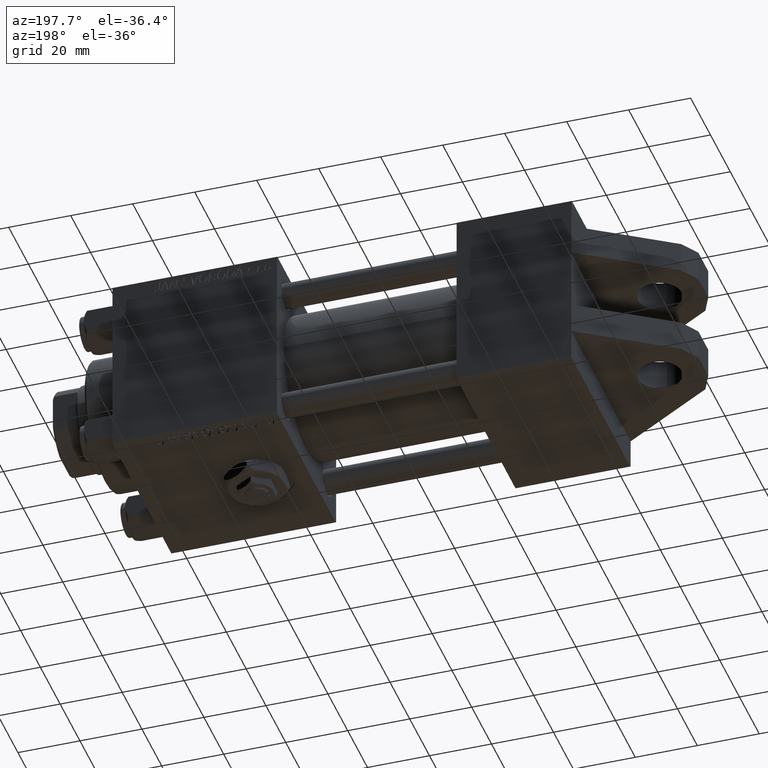
[diagram: clean part render]
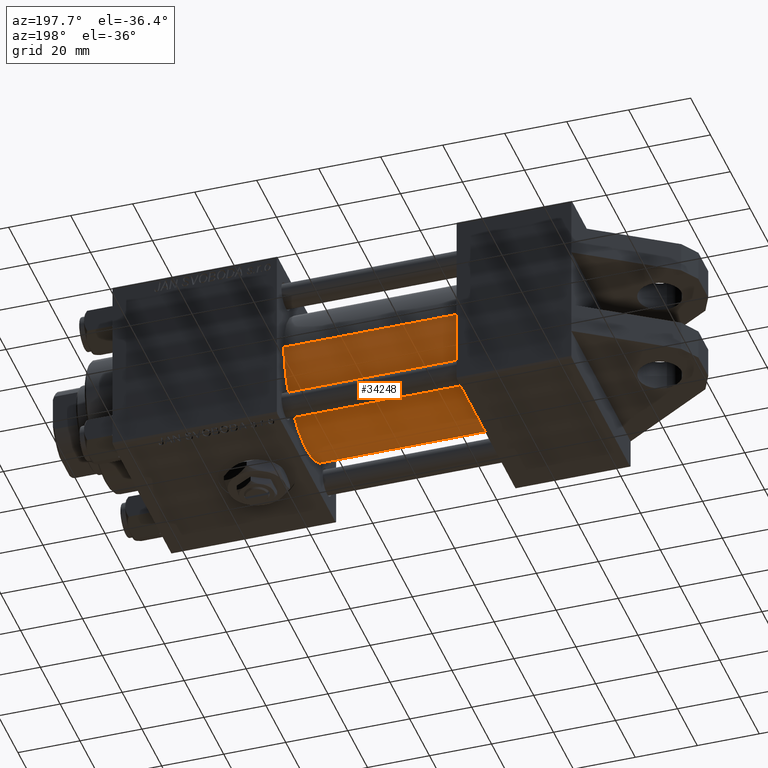
[diagram: same view with one face highlighted and labeled with its STEP entity id]
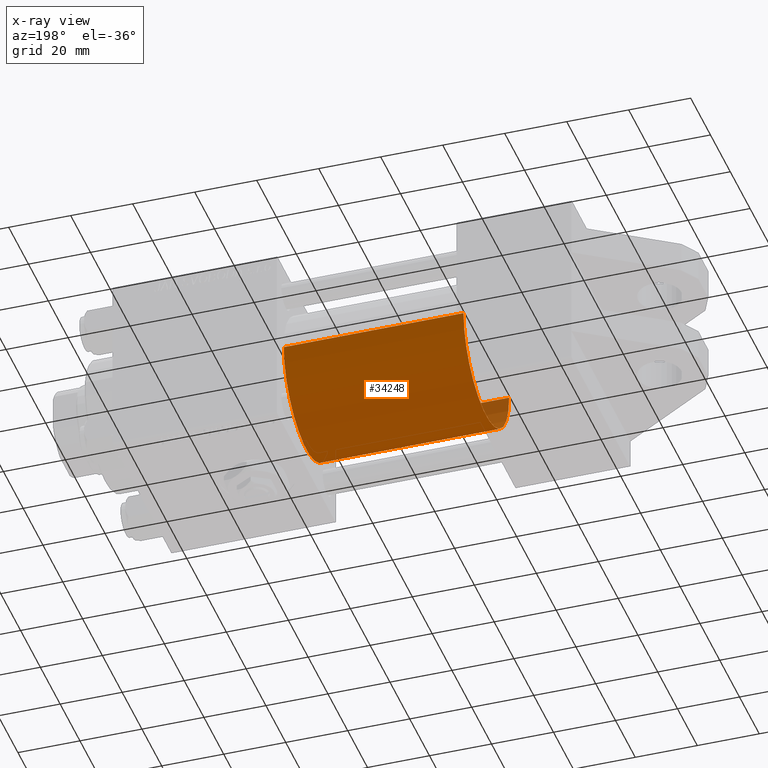
[diagram: x-ray of the same camera — body ghosted, the highlighted face saturated]
A machine part, auxiliary view. The second image highlights one B-rep face of the part: STEP entity #34248.
The next image is the same camera in x-ray: the body ghosted, the highlighted face saturated — about 3% of this face is hidden behind the body in this view.
In plain terms, the highlighted cylindrical surface (partial cylindrical patch) has radius 23 mm, axis along (-1, -0, 0).
Its self-contained STEP definition (entity closure, byte-faithful):
#630 = LINE ( 'NONE', #16745, #14661 ) ;
#833 = AXIS2_PLACEMENT_3D ( 'NONE', #4963, #28916, #21086 ) ;
#3723 = CARTESIAN_POINT ( 'NONE',  ( 37.00000000000000000, -6.527593139147022314E-16, -23.00000000000000000 ) ) ;
#3897 = LINE ( 'NONE', #4148, #19136 ) ;
#4148 = CARTESIAN_POINT ( 'NONE',  ( 95.00000000000000000, -6.527593139147022314E-16, -23.00000000000000000 ) ) ;
#4963 = CARTESIAN_POINT ( 'NONE',  ( 37.00000000000000000, -3.469446951953614189E-15, 0.000000000000000000 ) ) ;
#7312 = VERTEX_POINT ( 'NONE', #21875 ) ;
#8770 = DIRECTION ( 'NONE',  ( 0.000000000000000000, 0.000000000000000000, 1.000000000000000000 ) ) ;
#9037 = CARTESIAN_POINT ( 'NONE',  ( 95.00000000000000000, -3.469446951953614189E-15, 0.000000000000000000 ) ) ;
#10778 = ORIENTED_EDGE ( 'NONE', *, *, #46070, .T. ) ;
#11999 = DIRECTION ( 'NONE',  ( 0.000000000000000000, 0.000000000000000000, -1.000000000000000000 ) ) ;
#12203 = ORIENTED_EDGE ( 'NONE', *, *, #15894, .F. ) ;
#13992 = AXIS2_PLACEMENT_3D ( 'NONE', #19267, #30745, #11999 ) ;
#14661 = VECTOR ( 'NONE', #47222, 1000.000000000000000 ) ;
#15085 = CARTESIAN_POINT ( 'NONE',  ( 95.00000000000000000, -6.527593139147022314E-16, -23.00000000000000000 ) ) ;
#15298 = ORIENTED_EDGE ( 'NONE', *, *, #33704, .F. ) ;
#15894 = EDGE_CURVE ( 'NONE', #37842, #7312, #25511, .T. ) ;
#16059 = DIRECTION ( 'NONE',  ( -1.000000000000000000, -0.000000000000000000, -0.000000000000000000 ) ) ;
#16745 = CARTESIAN_POINT ( 'NONE',  ( 95.00000000000000000, -3.469446951953614189E-15, 23.00000000000000000 ) ) ;
#19136 = VECTOR ( 'NONE', #40056, 1000.000000000000000 ) ;
#19267 = CARTESIAN_POINT ( 'NONE',  ( 95.00000000000000000, -3.469446951953614189E-15, 0.000000000000000000 ) ) ;
#20481 = FACE_OUTER_BOUND ( 'NONE', #35387, .T. ) ;
#20780 = CIRCLE ( 'NONE', #833, 23.00000000000000000 ) ;
#21086 = DIRECTION ( 'NONE',  ( 0.000000000000000000, 0.000000000000000000, 1.000000000000000000 ) ) ;
#21875 = CARTESIAN_POINT ( 'NONE',  ( 95.00000000000000000, -3.469446951953614189E-15, 23.00000000000000000 ) ) ;
#25511 = CIRCLE ( 'NONE', #13992, 23.00000000000000000 ) ;
#25898 = CARTESIAN_POINT ( 'NONE',  ( 37.00000000000000000, -3.469446951953614189E-15, 23.00000000000000000 ) ) ;
#27494 = VERTEX_POINT ( 'NONE', #3723 ) ;
#28916 = DIRECTION ( 'NONE',  ( 1.000000000000000000, -0.000000000000000000, 0.000000000000000000 ) ) ;
#30745 = DIRECTION ( 'NONE',  ( 1.000000000000000000, 0.000000000000000000, 0.000000000000000000 ) ) ;
#33704 = EDGE_CURVE ( 'NONE', #7312, #36955, #630, .T. ) ;
#34248 = ADVANCED_FACE ( 'NONE', ( #20481 ), #40256, .T. ) ;
#35387 = EDGE_LOOP ( 'NONE', ( #12203, #50781, #10778, #15298 ) ) ;
#36955 = VERTEX_POINT ( 'NONE', #25898 ) ;
#37842 = VERTEX_POINT ( 'NONE', #15085 ) ;
#40056 = DIRECTION ( 'NONE',  ( -1.000000000000000000, -0.000000000000000000, -0.000000000000000000 ) ) ;
#40256 = CYLINDRICAL_SURFACE ( 'NONE', #40447, 23.00000000000000000 ) ;
#40447 = AXIS2_PLACEMENT_3D ( 'NONE', #9037, #16059, #8770 ) ;
#46070 = EDGE_CURVE ( 'NONE', #27494, #36955, #20780, .T. ) ;
#47213 = EDGE_CURVE ( 'NONE', #37842, #27494, #3897, .T. ) ;
#47222 = DIRECTION ( 'NONE',  ( -1.000000000000000000, -0.000000000000000000, -0.000000000000000000 ) ) ;
#50781 = ORIENTED_EDGE ( 'NONE', *, *, #47213, .T. ) ;